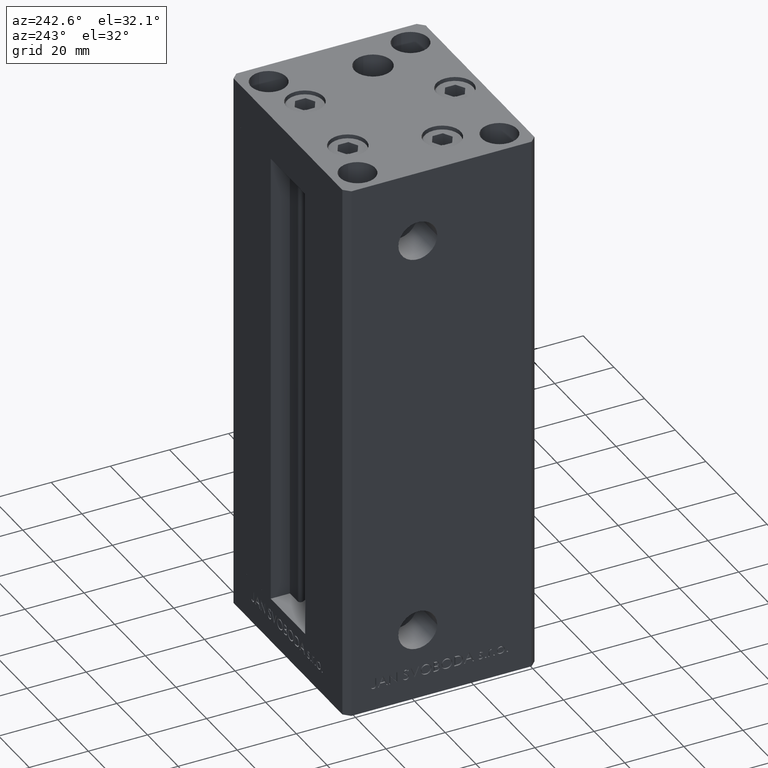
[diagram: clean part render]
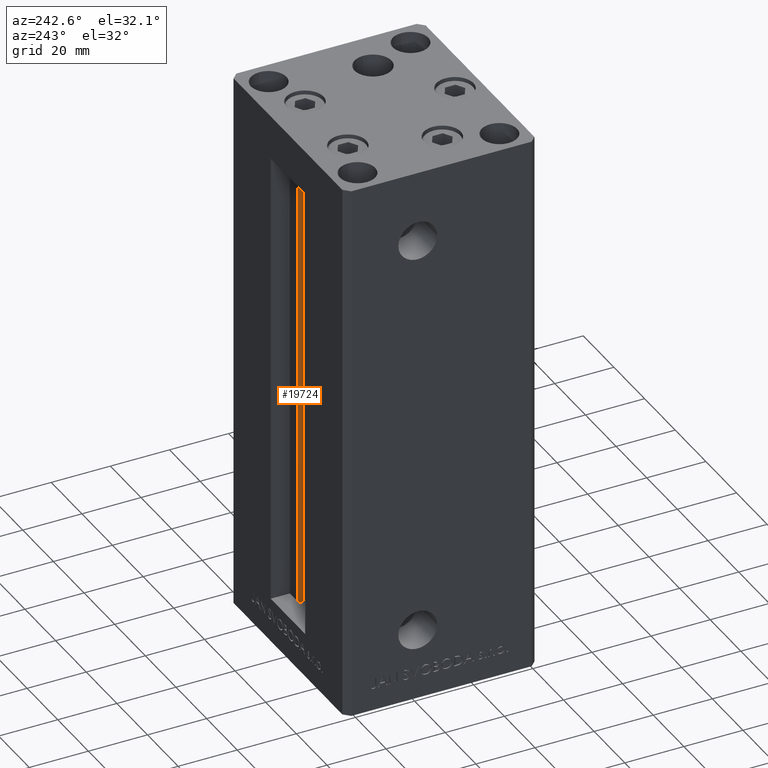
[diagram: same view with one face highlighted and labeled with its STEP entity id]
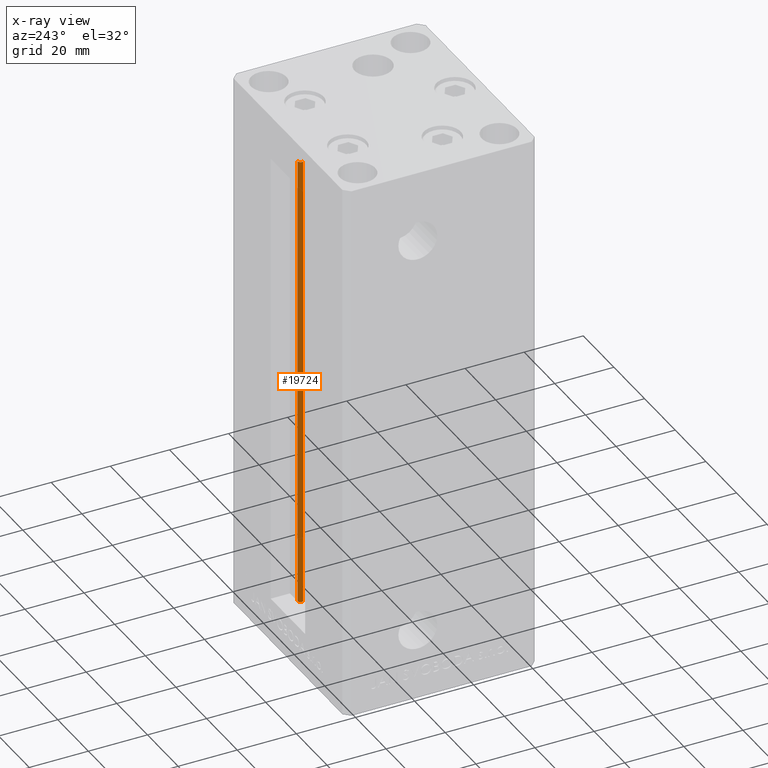
[diagram: x-ray of the same camera — body ghosted, the highlighted face saturated]
A machine part, auxiliary view. The second image highlights one B-rep face of the part: STEP entity #19724.
The next image is the same camera in x-ray: the body ghosted, the highlighted face saturated — about 0% of this face is hidden behind the body in this view.
In plain terms, the highlighted cylindrical surface (edge-blend (fillet) strip) has radius 0.9333 mm, axis along (0, 0, 1).
Its self-contained STEP definition (entity closure, byte-faithful):
#363 = LINE ( 'NONE', #15675, #12683 ) ;
#4328 = CARTESIAN_POINT ( 'NONE',  ( 5.375042956467947164, 24.59999999999899245, 0.000000000000000000 ) ) ;
#6876 = VERTEX_POINT ( 'NONE', #40641 ) ;
#7589 = ORIENTED_EDGE ( 'NONE', *, *, #38196, .T. ) ;
#7608 = CARTESIAN_POINT ( 'NONE',  ( 6.183333333334001480, 25.06666666666599141, 0.000000000000000000 ) ) ;
#7889 = EDGE_CURVE ( 'NONE', #35671, #20709, #29028, .T. ) ;
#9486 = DIRECTION ( 'NONE',  ( 0.000000000000000000, 0.000000000000000000, -1.000000000000000000 ) ) ;
#11385 = DIRECTION ( 'NONE',  ( 1.000000000000000000, 0.000000000000000000, 0.000000000000000000 ) ) ;
#12683 = VECTOR ( 'NONE', #30515, 1000.000000000000000 ) ;
#12818 = EDGE_LOOP ( 'NONE', ( #36603, #29462, #22399, #7589 ) ) ;
#14005 = DIRECTION ( 'NONE',  ( 1.000000000000000000, 0.000000000000000000, 0.000000000000000000 ) ) ;
#14649 = CYLINDRICAL_SURFACE ( 'NONE', #20832, 0.9333333333340008142 ) ;
#15675 = CARTESIAN_POINT ( 'NONE',  ( 6.183333333334001480, 25.99999999999999289, 0.000000000000000000 ) ) ;
#16987 = DIRECTION ( 'NONE',  ( -0.000000000000000000, -0.000000000000000000, 1.000000000000000000 ) ) ;
#17227 = CARTESIAN_POINT ( 'NONE',  ( 5.375042956467947164, 24.59999999999899245, 0.000000000000000000 ) ) ;
#17276 = CARTESIAN_POINT ( 'NONE',  ( 6.183333333334001480, 25.06666666666599141, 0.000000000000000000 ) ) ;
#18493 = EDGE_CURVE ( 'NONE', #35671, #6876, #43278, .T. ) ;
#19724 = ADVANCED_FACE ( 'NONE', ( #26700 ), #14649, .T. ) ;
#20709 = VERTEX_POINT ( 'NONE', #38352 ) ;
#20832 = AXIS2_PLACEMENT_3D ( 'NONE', #7608, #26451, #11385 ) ;
#22399 = ORIENTED_EDGE ( 'NONE', *, *, #7889, .T. ) ;
#24618 = AXIS2_PLACEMENT_3D ( 'NONE', #40904, #9486, #44428 ) ;
#25249 = CARTESIAN_POINT ( 'NONE',  ( 6.183333333334001480, 25.99999999999999289, 156.0000000000000000 ) ) ;
#26451 = DIRECTION ( 'NONE',  ( -0.000000000000000000, -0.000000000000000000, 1.000000000000000000 ) ) ;
#26700 = FACE_OUTER_BOUND ( 'NONE', #12818, .T. ) ;
#29028 = LINE ( 'NONE', #17227, #45515 ) ;
#29462 = ORIENTED_EDGE ( 'NONE', *, *, #18493, .F. ) ;
#30515 = DIRECTION ( 'NONE',  ( -0.000000000000000000, -0.000000000000000000, 1.000000000000000000 ) ) ;
#35671 = VERTEX_POINT ( 'NONE', #4328 ) ;
#36039 = VERTEX_POINT ( 'NONE', #25249 ) ;
#36603 = ORIENTED_EDGE ( 'NONE', *, *, #44212, .F. ) ;
#38196 = EDGE_CURVE ( 'NONE', #20709, #36039, #49513, .T. ) ;
#38352 = CARTESIAN_POINT ( 'NONE',  ( 5.375042956467948052, 24.59999999999899245, 156.0000000000000000 ) ) ;
#40073 = AXIS2_PLACEMENT_3D ( 'NONE', #17276, #44926, #14005 ) ;
#40641 = CARTESIAN_POINT ( 'NONE',  ( 6.183333333334001480, 25.99999999999999289, 0.000000000000000000 ) ) ;
#40904 = CARTESIAN_POINT ( 'NONE',  ( 6.183333333334001480, 25.06666666666599141, 156.0000000000000000 ) ) ;
#43278 = CIRCLE ( 'NONE', #40073, 0.9333333333340008142 ) ;
#44212 = EDGE_CURVE ( 'NONE', #6876, #36039, #363, .T. ) ;
#44428 = DIRECTION ( 'NONE',  ( 1.000000000000000000, 0.000000000000000000, 0.000000000000000000 ) ) ;
#44926 = DIRECTION ( 'NONE',  ( -0.000000000000000000, -0.000000000000000000, -1.000000000000000000 ) ) ;
#45515 = VECTOR ( 'NONE', #16987, 1000.000000000000000 ) ;
#49513 = CIRCLE ( 'NONE', #24618, 0.9333333333340008142 ) ;